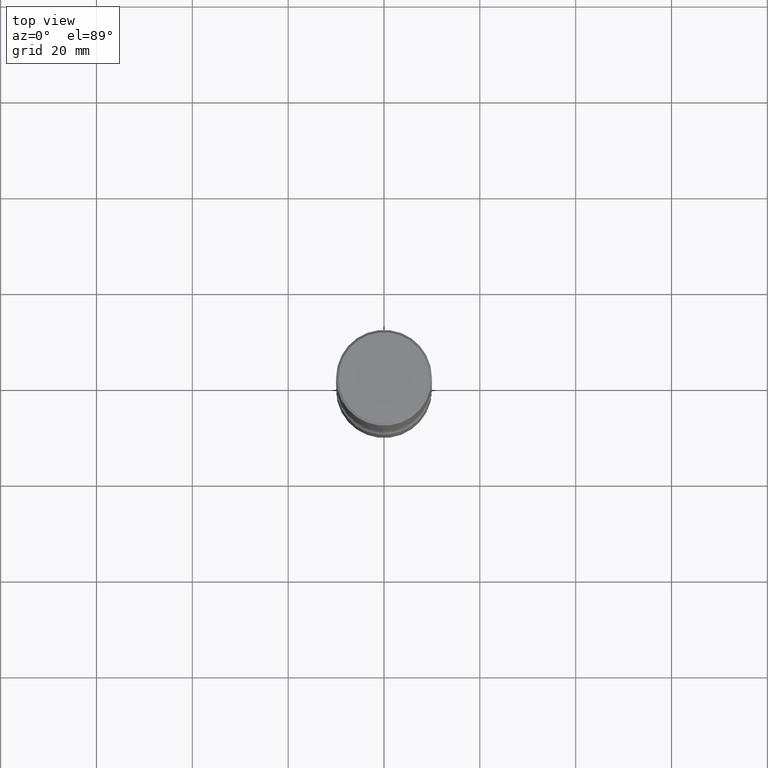
[diagram: clean part render]
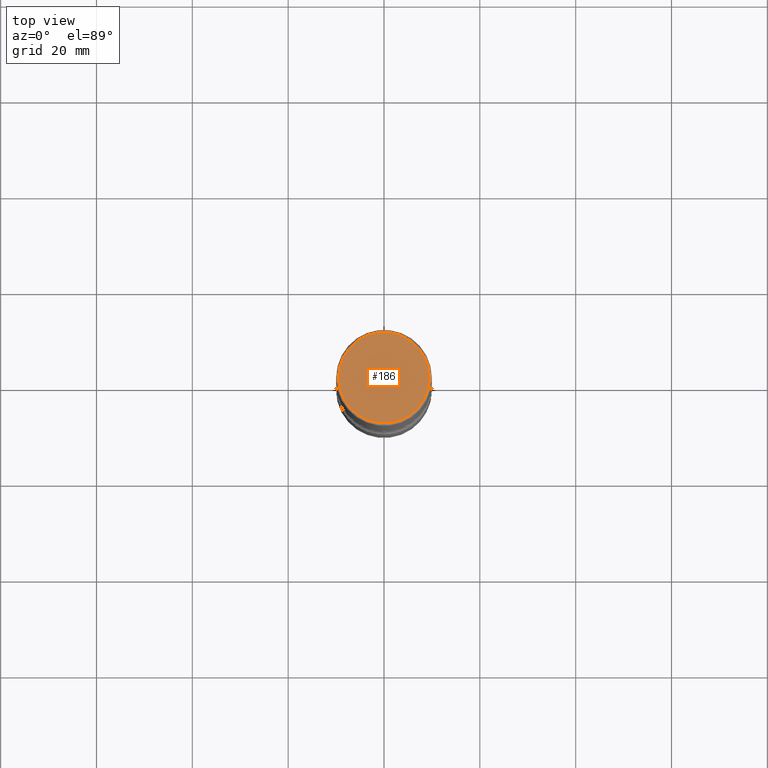
[diagram: same view with one face highlighted and labeled with its STEP entity id]
A machine part, top view. The second image highlights one B-rep face of the part: STEP entity #186.
In plain terms, the highlighted planar face has unit normal (0, -0, -1).
Its self-contained STEP definition (entity closure, byte-faithful):
#25 = DIRECTION ( 'NONE',  ( -2.445468806185136597E-29, 3.491481338843145583E-15, 1.000000000000000000 ) ) ;
#33 = AXIS2_PLACEMENT_3D ( 'NONE', #248, #510, #422 ) ;
#44 = CARTESIAN_POINT ( 'NONE',  ( -2.087702828670439639E-46, 2.980686340760894400E-32, 8.537024980200822558E-18 ) ) ;
#96 = DIRECTION ( 'NONE',  ( 1.000000000000000000, -6.982962677686266711E-15, 4.876212485538976239E-29 ) ) ;
#170 = FACE_OUTER_BOUND ( 'NONE', #505, .T. ) ;
#186 = ADVANCED_FACE ( 'NONE', ( #170 ), #300, .F. ) ;
#199 = DIRECTION ( 'NONE',  ( -2.445468806185136597E-29, 3.491481338843145583E-15, 1.000000000000000000 ) ) ;
#203 = EDGE_CURVE ( 'NONE', #390, #256, #370, .T. ) ;
#204 = ORIENTED_EDGE ( 'NONE', *, *, #203, .T. ) ;
#248 = CARTESIAN_POINT ( 'NONE',  ( 2.609533152651356620E-15, 0.3736999999999999211, -1.300498063835582814E-15 ) ) ;
#252 = CARTESIAN_POINT ( 'NONE',  ( -0.3736999999999999211, 2.644447966039788269E-15, 8.537024980182450727E-18 ) ) ;
#255 = AXIS2_PLACEMENT_3D ( 'NONE', #44, #199, #96 ) ;
#256 = VERTEX_POINT ( 'NONE', #400 ) ;
#274 = CARTESIAN_POINT ( 'NONE',  ( -2.087702828670439639E-46, 2.980686340760894400E-32, 8.537024980200822558E-18 ) ) ;
#300 = PLANE ( 'NONE',  #33 ) ;
#330 = AXIS2_PLACEMENT_3D ( 'NONE', #274, #25, #411 ) ;
#370 = CIRCLE ( 'NONE', #255, 0.3736999999999999211 ) ;
#390 = VERTEX_POINT ( 'NONE', #252 ) ;
#400 = CARTESIAN_POINT ( 'NONE',  ( 0.3736999999999999211, -2.667287895133367964E-15, 8.537024980219274507E-18 ) ) ;
#411 = DIRECTION ( 'NONE',  ( 1.000000000000000000, -6.982962677686266711E-15, 4.876212485538976239E-29 ) ) ;
#422 = DIRECTION ( 'NONE',  ( -1.000000000000000000, 6.982962677686265922E-15, -4.876176775795935793E-29 ) ) ;
#449 = CIRCLE ( 'NONE', #330, 0.3736999999999999211 ) ;
#490 = EDGE_CURVE ( 'NONE', #256, #390, #449, .T. ) ;
#505 = EDGE_LOOP ( 'NONE', ( #204, #560 ) ) ;
#510 = DIRECTION ( 'NONE',  ( 2.438088387897960049E-29, -3.491481338843145188E-15, -1.000000000000000000 ) ) ;
#560 = ORIENTED_EDGE ( 'NONE', *, *, #490, .T. ) ;